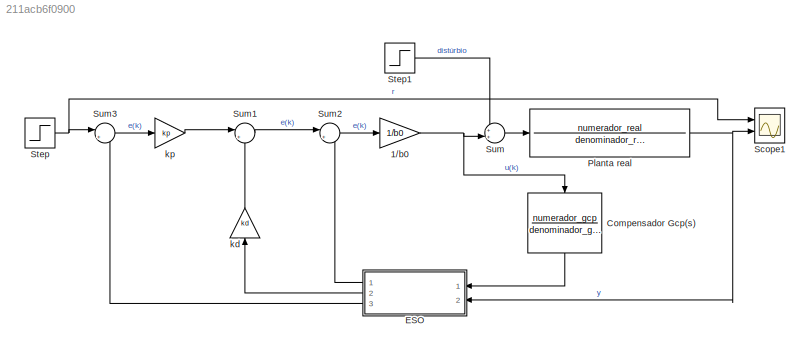
MODEL slx_211acb6f0900
KIND model
CONFIG AbsTol = auto
CONFIG EnableMultiTasking = off
CONFIG FixedStep = auto
CONFIG MaxStep = auto
CONFIG MinStep = auto
CONFIG RelTol = 1e-3
CONFIG SampleTimeConstraint = Unconstrained
CONFIG SolverName = VariableStepAuto
CONFIG StartTime = 0.0
CONFIG StopTime = 20000
BLOCK [Gain] 1//b0
  Gain = 1/b0
BLOCK [TransferFcn] Compensador Gcp(s)
  Denominator = denominador_gcp
  NameLocation = left
  Numerator = numerador_gcp
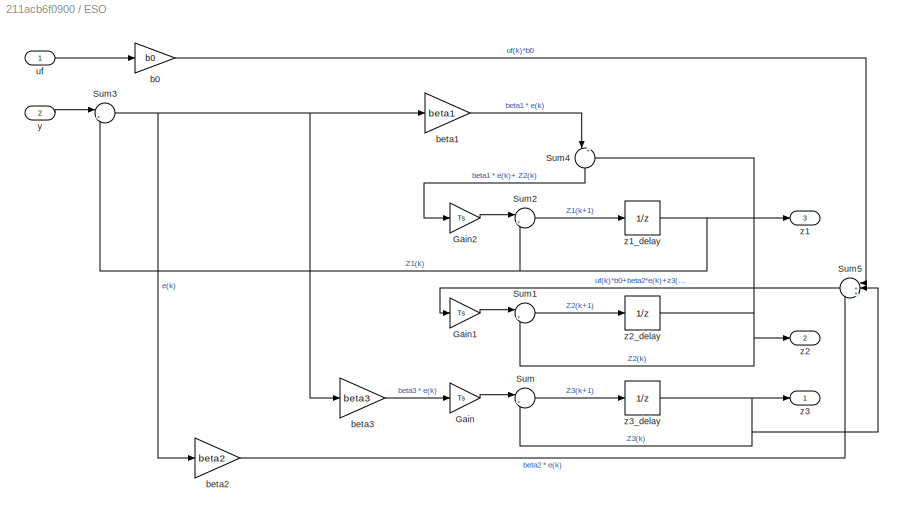
BLOCK [SubSystem] ESO
  NameLocation = top
  Ports = [2, 3]
  RequestExecContextInheritance = off
BLOCK [Gain] ESO/Gain
  Gain = Ts
BLOCK [Gain] ESO/Gain1
  Gain = Ts
BLOCK [Gain] ESO/Gain2
  Gain = Ts
BLOCK [Sum] ESO/Sum
  Inputs = |++
  Ports = [2, 1]
BLOCK [Sum] ESO/Sum1
  Inputs = |++
  Ports = [2, 1]
BLOCK [Sum] ESO/Sum2
  Inputs = |++
  Ports = [2, 1]
BLOCK [Sum] ESO/Sum3
  Inputs = |+-
  Ports = [2, 1]
BLOCK [Sum] ESO/Sum4
  Inputs = |++
  NameLocation = left
  Ports = [2, 1]
BLOCK [Sum] ESO/Sum5
  Inputs = |+++
  NameLocation = top
  Ports = [3, 1]
BLOCK [Gain] ESO/b0
  Gain = b0
BLOCK [Gain] ESO/beta1
  Gain = beta1
BLOCK [Gain] ESO/beta2
  Gain = beta2
BLOCK [Gain] ESO/beta3
  Gain = beta3
BLOCK [Inport] ESO/uf
BLOCK [Inport] ESO/y
  Port = 2
BLOCK [Outport] ESO/z1
  Port = 3
BLOCK [UnitDelay] ESO/z1_delay
  HasFrameUpgradeWarning = on
  SampleTime = -1
BLOCK [Outport] ESO/z2
  Port = 2
BLOCK [UnitDelay] ESO/z2_delay
  HasFrameUpgradeWarning = on
  SampleTime = -1
BLOCK [Outport] ESO/z3
BLOCK [UnitDelay] ESO/z3_delay
  HasFrameUpgradeWarning = on
  SampleTime = -1
BLOCK [TransferFcn] Planta real
  Denominator = denominador_real
  Numerator = numerador_real
BLOCK [Scope] Scope1
  Floating = off
  NumInputPorts = 2
  Ports = [2]
  ScopeSpecificationString = Simulink.scopes.TimeScopeBlockCfg('CurrentConfiguration', extmgr.ConfigurationSet(extmgr.Configuration('Core','General UI',true,'FigureColor',[1 1 1]),extmgr.Configuration('Core','Source UI',true),extmgr.Configuration('Sources','WiredSimulink',true),extmgr.Configuration('Visuals','Time Domain',true,'SerializedDisplays',{struct('MinYLimReal','-3.44481','MaxYLimReal','31.0033','YLabelReal','','MinYL...<+1752ch>
BLOCK [Step] Step
  After = ref_final
  Before = ref_inicial
  SampleTime = Ts
  Time = t_degrau
BLOCK [Step] Step1
  After = 0.25
  SampleTime = Ts
  Time = 10000
BLOCK [Sum] Sum
  Inputs = ++|
  Ports = [2, 1]
BLOCK [Sum] Sum1
  Inputs = |+-
  Ports = [2, 1]
BLOCK [Sum] Sum2
  Inputs = |+-
  Ports = [2, 1]
BLOCK [Sum] Sum3
  Inputs = |+-
  Ports = [2, 1]
BLOCK [Gain] kd
  Gain = kd
  NameLocation = right
BLOCK [Gain] kp
  Gain = kp
NET 1//b0:1 -> Compensador Gcp(s):1, Sum:2
LINE Compensador Gcp(s):1 -> ESO:1
LINE ESO/Gain1:1 -> ESO/Sum1:1
LINE ESO/Gain2:1 -> ESO/Sum2:1
LINE ESO/Gain:1 -> ESO/Sum:1
LINE ESO/Sum1:1 -> ESO/z2_delay:1
LINE ESO/Sum2:1 -> ESO/z1_delay:1
NET ESO/Sum3:1 -> ESO/beta1:1, ESO/beta2:1, ESO/beta3:1
LINE ESO/Sum4:1 -> ESO/Gain2:1
LINE ESO/Sum5:1 -> ESO/Gain1:1
LINE ESO/Sum:1 -> ESO/z3_delay:1
LINE ESO/b0:1 -> ESO/Sum5:1
LINE ESO/beta1:1 -> ESO/Sum4:1
LINE ESO/beta2:1 -> ESO/Sum5:3
LINE ESO/beta3:1 -> ESO/Gain:1
LINE ESO/uf:1 -> ESO/b0:1
LINE ESO/y:1 -> ESO/Sum3:1
NET ESO/z1_delay:1 -> ESO/Sum2:2, ESO/Sum3:2, ESO/z1:1
NET ESO/z2_delay:1 -> ESO/Sum1:2, ESO/Sum4:2, ESO/z2:1
NET ESO/z3_delay:1 -> ESO/Sum5:2, ESO/Sum:2, ESO/z3:1
LINE ESO:1 -> Sum2:2
LINE ESO:2 -> kd:1
LINE ESO:3 -> Sum3:2
NET Planta real:1 -> ESO:2, Scope1:2
LINE Step1:1 -> Sum:1
NET Step:1 -> Scope1:1, Sum3:1
LINE Sum1:1 -> Sum2:1
LINE Sum2:1 -> 1//b0:1
LINE Sum3:1 -> kp:1
LINE Sum:1 -> Planta real:1
LINE kd:1 -> Sum1:2
LINE kp:1 -> Sum1:1
note: NET lines group one-source signal fan-out (src -> all destinations, sorted); 1:1 wires keep LINE
